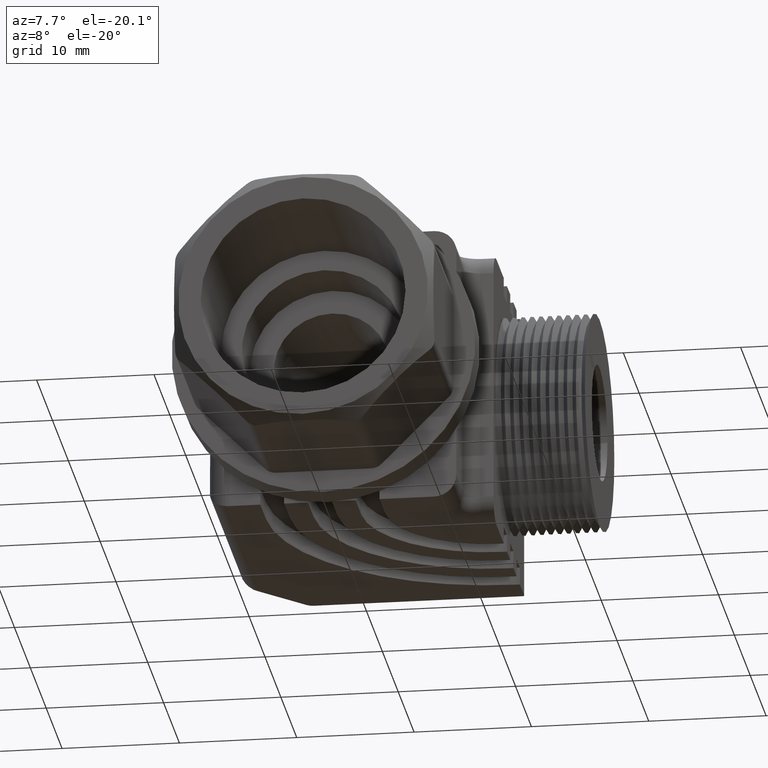
[diagram: clean part render]
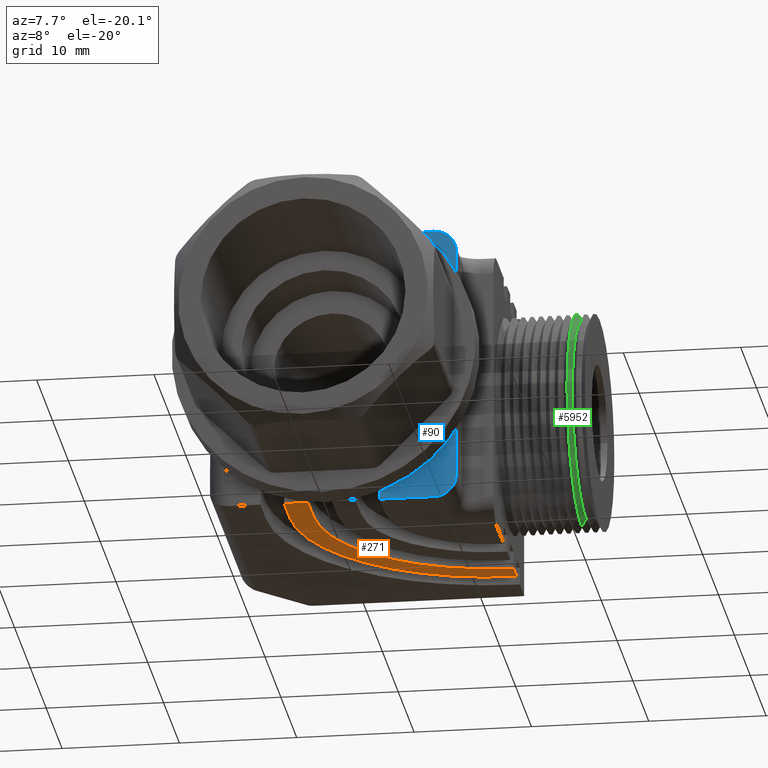
[diagram: same view with three faces highlighted in distinct colors, each labeled with its STEP entity id]
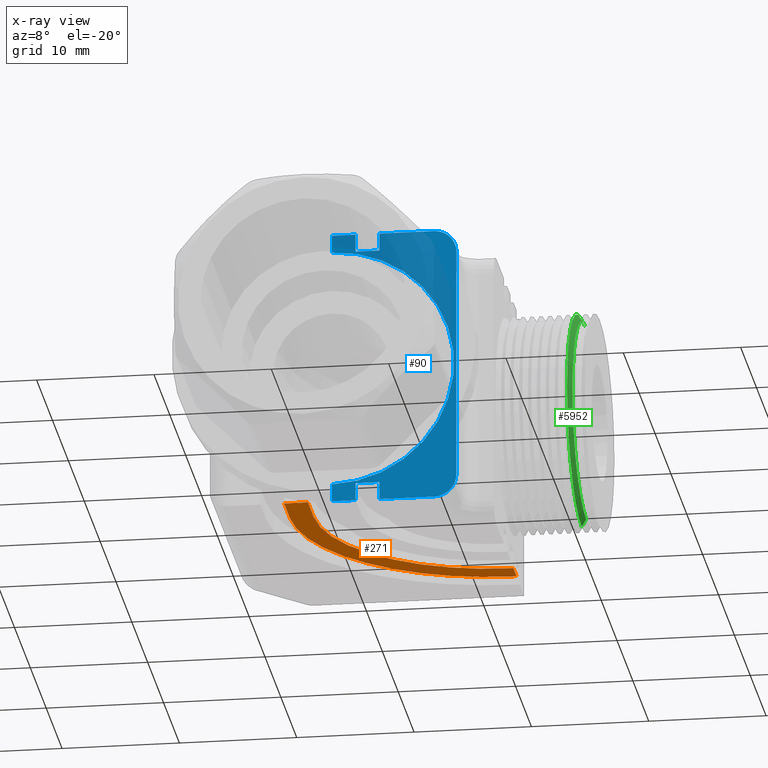
[diagram: x-ray of the same camera — body ghosted, the three highlighted faces saturated]
A machine part, auxiliary view with three faces highlighted in distinct colors.
The next image is the same camera in x-ray (body ghosted, the three faces saturated) — at least one of them is partly hidden behind the body in this view.
Their STEP definitions:

[orange] entity #271 — the highlighted planar face has unit normal (0, 0, 1).
#133 = ORIENTED_EDGE ( 'NONE', *, *, #135, .F. ) ;
#135 = EDGE_CURVE ( 'NONE', #249, #270, #1863, .T. ) ;
#185 = EDGE_LOOP ( 'NONE', ( #272, #251, #259, #223, #226, #242, #244, #133 ) ) ;
#222 = VERTEX_POINT ( 'NONE', #2075 ) ;
#223 = ORIENTED_EDGE ( 'NONE', *, *, #224, .F. ) ;
#224 = EDGE_CURVE ( 'NONE', #225, #222, #2074, .T. ) ;
#225 = VERTEX_POINT ( 'NONE', #2070 ) ;
#226 = ORIENTED_EDGE ( 'NONE', *, *, #227, .F. ) ;
#227 = EDGE_CURVE ( 'NONE', #228, #225, #2069, .T. ) ;
#228 = VERTEX_POINT ( 'NONE', #2064 ) ;
#231 = VERTEX_POINT ( 'NONE', #2059 ) ;
#242 = ORIENTED_EDGE ( 'NONE', *, *, #243, .T. ) ;
#243 = EDGE_CURVE ( 'NONE', #228, #231, #2102, .T. ) ;
#244 = ORIENTED_EDGE ( 'NONE', *, *, #246, .F. ) ;
#246 = EDGE_CURVE ( 'NONE', #270, #231, #2098, .T. ) ;
#248 = EDGE_CURVE ( 'NONE', #249, #250, #2094, .T. ) ;
#249 = VERTEX_POINT ( 'NONE', #2089 ) ;
#250 = VERTEX_POINT ( 'NONE', #2088 ) ;
#251 = ORIENTED_EDGE ( 'NONE', *, *, #252, .T. ) ;
#252 = EDGE_CURVE ( 'NONE', #250, #253, #2087, .T. ) ;
#253 = VERTEX_POINT ( 'NONE', #2083 ) ;
#259 = ORIENTED_EDGE ( 'NONE', *, *, #260, .F. ) ;
#260 = EDGE_CURVE ( 'NONE', #222, #253, #2142, .T. ) ;
#270 = VERTEX_POINT ( 'NONE', #2120 ) ;
#271 = ADVANCED_FACE ( 'NONE', ( #2119 ), #2118, .F. ) ;
#272 = ORIENTED_EDGE ( 'NONE', *, *, #248, .T. ) ;
#1860 = DIRECTION ( 'NONE',  ( -0.0000000000000000000, -1.000000000000000000, -0.0000000000000000000 ) ) ;
#1861 = VECTOR ( 'NONE', #1860, 39.37007874015748100 ) ;
#1862 = CARTESIAN_POINT ( 'NONE',  ( -0.1599999999999999200, 0.8549999999999998700, -0.4699999999999999700 ) ) ;
#1863 = LINE ( 'NONE', #1862, #1861 ) ;
#2059 = CARTESIAN_POINT ( 'NONE',  ( -0.07999999999999990500, 0.7140000000000000800, -0.4699999999999999700 ) ) ;
#2064 = CARTESIAN_POINT ( 'NONE',  ( -0.07999999999999990500, 0.8549999999999997600, -0.4699999999999997500 ) ) ;
#2065 = DIRECTION ( 'NONE',  ( -1.000000000000000000, 0.0000000000000000000, 0.0000000000000000000 ) ) ;
#2066 = DIRECTION ( 'NONE',  ( 0.0000000000000000000, 0.0000000000000000000, -1.000000000000000000 ) ) ;
#2067 = CARTESIAN_POINT ( 'NONE',  ( 0.5000000000000000000, 0.8549999999999997600, -0.4699999999999996400 ) ) ;
#2068 = AXIS2_PLACEMENT_3D ( 'NONE', #2067, #2066, #2065 ) ;
#2069 = CIRCLE ( 'NONE', #2068, 0.5799999999999998500 ) ;
#2070 = CARTESIAN_POINT ( 'NONE',  ( 0.4999999999999998300, 1.434999999999999800, -0.4699999999999996400 ) ) ;
#2071 = DIRECTION ( 'NONE',  ( 1.000000000000000000, 5.054488504686706200E-016, -0.0000000000000000000 ) ) ;
#2072 = VECTOR ( 'NONE', #2071, 39.37007874015748100 ) ;
#2073 = CARTESIAN_POINT ( 'NONE',  ( 0.5000000000000000000, 1.434999999999999800, -0.4699999999999996400 ) ) ;
#2074 = LINE ( 'NONE', #2073, #2072 ) ;
#2075 = CARTESIAN_POINT ( 'NONE',  ( 0.5119822449999997800, 1.434999999999999800, -0.4699999999999997500 ) ) ;
#2083 = CARTESIAN_POINT ( 'NONE',  ( 0.5119822449999997800, 1.514999999999999900, -0.4699999999999999700 ) ) ;
#2084 = DIRECTION ( 'NONE',  ( 1.000000000000000000, 0.0000000000000000000, -0.0000000000000000000 ) ) ;
#2085 = VECTOR ( 'NONE', #2084, 39.37007874015748100 ) ;
#2086 = CARTESIAN_POINT ( 'NONE',  ( 0.4680177549999999200, 1.514999999999999900, -0.4699999999999999700 ) ) ;
#2087 = LINE ( 'NONE', #2086, #2085 ) ;
#2088 = CARTESIAN_POINT ( 'NONE',  ( 0.5000000000000000000, 1.514999999999999500, -0.4699999999999999700 ) ) ;
#2089 = CARTESIAN_POINT ( 'NONE',  ( -0.1599999999999998100, 0.8549999999999997600, -0.4699999999999999700 ) ) ;
#2090 = DIRECTION ( 'NONE',  ( -1.000000000000000000, 0.0000000000000000000, 0.0000000000000000000 ) ) ;
#2091 = DIRECTION ( 'NONE',  ( 0.0000000000000000000, 0.0000000000000000000, -1.000000000000000000 ) ) ;
#2092 = CARTESIAN_POINT ( 'NONE',  ( 0.5000000000000000000, 0.8549999999999997600, -0.4699999999999999700 ) ) ;
#2093 = AXIS2_PLACEMENT_3D ( 'NONE', #2092, #2091, #2090 ) ;
#2094 = CIRCLE ( 'NONE', #2093, 0.6599999999999999200 ) ;
#2095 = DIRECTION ( 'NONE',  ( 1.000000000000000000, -0.0000000000000000000, -0.0000000000000000000 ) ) ;
#2096 = VECTOR ( 'NONE', #2095, 39.37007874015748100 ) ;
#2097 = CARTESIAN_POINT ( 'NONE',  ( 6.829619984160658000E-017, 0.7140000000000000800, -0.4699999999999999700 ) ) ;
#2098 = LINE ( 'NONE', #2097, #2096 ) ;
#2099 = DIRECTION ( 'NONE',  ( 0.0000000000000000000, -1.000000000000000000, -0.0000000000000000000 ) ) ;
#2100 = VECTOR ( 'NONE', #2099, 39.37007874015748100 ) ;
#2101 = CARTESIAN_POINT ( 'NONE',  ( -0.07999999999999990500, 0.8899999999999999000, -0.4699999999999999700 ) ) ;
#2102 = LINE ( 'NONE', #2101, #2100 ) ;
#2114 = DIRECTION ( 'NONE',  ( 1.000000000000000000, 0.0000000000000000000, -0.0000000000000000000 ) ) ;
#2115 = DIRECTION ( 'NONE',  ( 0.0000000000000000000, 0.0000000000000000000, 1.000000000000000000 ) ) ;
#2116 = CARTESIAN_POINT ( 'NONE',  ( 0.4680177549999999200, 0.8899999999999999000, -0.4699999999999999700 ) ) ;
#2117 = AXIS2_PLACEMENT_3D ( 'NONE', #2116, #2115, #2114 ) ;
#2118 = PLANE ( 'NONE',  #2117 ) ;
#2119 = FACE_OUTER_BOUND ( 'NONE', #185, .T. ) ;
#2120 = CARTESIAN_POINT ( 'NONE',  ( -0.1599999999999999200, 0.7140000000000000800, -0.4699999999999999700 ) ) ;
#2139 = DIRECTION ( 'NONE',  ( -1.645691562448351400E-016, 1.000000000000000000, -0.0000000000000000000 ) ) ;
#2140 = VECTOR ( 'NONE', #2139, 39.37007874015748100 ) ;
#2141 = CARTESIAN_POINT ( 'NONE',  ( 0.5119822449999997800, 1.770000000000000000, -0.4699999999999999700 ) ) ;
#2142 = LINE ( 'NONE', #2141, #2140 ) ;

[blue] entity #90 — the highlighted planar face has unit normal (0, 1, -0).
#14 = VERTEX_POINT ( 'NONE', #1672 ) ;
#21 = VERTEX_POINT ( 'NONE', #1724 ) ;
#63 = EDGE_CURVE ( 'NONE', #21, #14, #1747, .T. ) ;
#88 = VERTEX_POINT ( 'NONE', #1823 ) ;
#90 = ADVANCED_FACE ( 'NONE', ( #1821 ), #1820, .F. ) ;
#193 = VERTEX_POINT ( 'NONE', #2000 ) ;
#194 = ORIENTED_EDGE ( 'NONE', *, *, #316, .T. ) ;
#195 = VERTEX_POINT ( 'NONE', #1999 ) ;
#196 = ORIENTED_EDGE ( 'NONE', *, *, #212, .F. ) ;
#197 = ORIENTED_EDGE ( 'NONE', *, *, #198, .F. ) ;
#198 = EDGE_CURVE ( 'NONE', #21, #201, #1998, .T. ) ;
#199 = ORIENTED_EDGE ( 'NONE', *, *, #200, .F. ) ;
#200 = EDGE_CURVE ( 'NONE', #201, #305, #1994, .T. ) ;
#201 = VERTEX_POINT ( 'NONE', #1990 ) ;
#202 = ORIENTED_EDGE ( 'NONE', *, *, #306, .T. ) ;
#203 = VERTEX_POINT ( 'NONE', #1989 ) ;
#204 = ORIENTED_EDGE ( 'NONE', *, *, #279, .F. ) ;
#205 = ORIENTED_EDGE ( 'NONE', *, *, #206, .T. ) ;
#206 = EDGE_CURVE ( 'NONE', #14, #261, #1988, .T. ) ;
#207 = EDGE_CURVE ( 'NONE', #88, #235, #2045, .T. ) ;
#208 = EDGE_CURVE ( 'NONE', #195, #310, #2041, .T. ) ;
#209 = EDGE_CURVE ( 'NONE', #215, #307, #2036, .T. ) ;
#210 = EDGE_CURVE ( 'NONE', #213, #211, #2032, .T. ) ;
#211 = VERTEX_POINT ( 'NONE', #2027 ) ;
#212 = EDGE_CURVE ( 'NONE', #213, #310, #2026, .T. ) ;
#213 = VERTEX_POINT ( 'NONE', #2022 ) ;
#214 = ORIENTED_EDGE ( 'NONE', *, *, #210, .T. ) ;
#215 = VERTEX_POINT ( 'NONE', #2021 ) ;
#235 = VERTEX_POINT ( 'NONE', #2052 ) ;
#236 = VERTEX_POINT ( 'NONE', #2051 ) ;
#237 = ORIENTED_EDGE ( 'NONE', *, *, #238, .T. ) ;
#238 = EDGE_CURVE ( 'NONE', #236, #215, #2050, .T. ) ;
#261 = VERTEX_POINT ( 'NONE', #2138 ) ;
#263 = ORIENTED_EDGE ( 'NONE', *, *, #264, .F. ) ;
#264 = EDGE_CURVE ( 'NONE', #203, #211, #2137, .T. ) ;
#265 = ORIENTED_EDGE ( 'NONE', *, *, #266, .T. ) ;
#266 = EDGE_CURVE ( 'NONE', #261, #193, #2133, .T. ) ;
#278 = ORIENTED_EDGE ( 'NONE', *, *, #209, .T. ) ;
#279 = EDGE_CURVE ( 'NONE', #235, #203, #2161, .T. ) ;
#305 = VERTEX_POINT ( 'NONE', #2185 ) ;
#306 = EDGE_CURVE ( 'NONE', #307, #195, #2184, .T. ) ;
#307 = VERTEX_POINT ( 'NONE', #2180 ) ;
#308 = ORIENTED_EDGE ( 'NONE', *, *, #63, .T. ) ;
#309 = ORIENTED_EDGE ( 'NONE', *, *, #208, .T. ) ;
#310 = VERTEX_POINT ( 'NONE', #2179 ) ;
#311 = ORIENTED_EDGE ( 'NONE', *, *, #312, .F. ) ;
#312 = EDGE_CURVE ( 'NONE', #305, #88, #2178, .T. ) ;
#313 = ORIENTED_EDGE ( 'NONE', *, *, #207, .F. ) ;
#314 = EDGE_LOOP ( 'NONE', ( #278, #202, #309, #196, #214, #263, #204, #313, #311, #199, #197, #308, #205, #265, #194, #237 ) ) ;
#316 = EDGE_CURVE ( 'NONE', #193, #236, #2234, .T. ) ;
#1672 = CARTESIAN_POINT ( 'NONE',  ( 2.510443025335873500E-017, 0.7140000000000000800, -0.4099999999999997000 ) ) ;
#1724 = CARTESIAN_POINT ( 'NONE',  ( 5.105637887225099100E-017, 0.7140000000000000800, 0.4099999999999997000 ) ) ;
#1743 = DIRECTION ( 'NONE',  ( 0.0000000000000000000, 0.0000000000000000000, 1.000000000000000000 ) ) ;
#1744 = DIRECTION ( 'NONE',  ( 0.0000000000000000000, 1.000000000000000000, 0.0000000000000000000 ) ) ;
#1745 = CARTESIAN_POINT ( 'NONE',  ( 0.0000000000000000000, 0.7140000000000000800, 0.0000000000000000000 ) ) ;
#1746 = AXIS2_PLACEMENT_3D ( 'NONE', #1745, #1744, #1743 ) ;
#1747 = CIRCLE ( 'NONE', #1746, 0.4099999999999999800 ) ;
#1815 = DIRECTION ( 'NONE',  ( 0.0000000000000000000, 0.0000000000000000000, 1.000000000000000000 ) ) ;
#1816 = DIRECTION ( 'NONE',  ( 0.0000000000000000000, 1.000000000000000000, -0.0000000000000000000 ) ) ;
#1817 = CARTESIAN_POINT ( 'NONE',  ( 6.829619984160658000E-017, 0.7140000000000000800, 0.4699999999999999700 ) ) ;
#1818 = AXIS2_PLACEMENT_3D ( 'NONE', #1817, #1816, #1815 ) ;
#1820 = PLANE ( 'NONE',  #1818 ) ;
#1821 = FACE_OUTER_BOUND ( 'NONE', #314, .T. ) ;
#1823 = CARTESIAN_POINT ( 'NONE',  ( 0.07999999999999998800, 0.7140000000000000800, 0.4099999999999994800 ) ) ;
#1985 = DIRECTION ( 'NONE',  ( -0.0000000000000000000, -0.0000000000000000000, -1.000000000000000000 ) ) ;
#1986 = VECTOR ( 'NONE', #1985, 39.37007874015748100 ) ;
#1987 = CARTESIAN_POINT ( 'NONE',  ( 6.735334946023065300E-017, 0.7140000000000000800, 0.4699999999999999700 ) ) ;
#1988 = LINE ( 'NONE', #1987, #1986 ) ;
#1989 = CARTESIAN_POINT ( 'NONE',  ( 0.1600000000000002000, 0.7140000000000000800, 0.4699999999999999700 ) ) ;
#1990 = CARTESIAN_POINT ( 'NONE',  ( 6.806048724626259600E-017, 0.7140000000000000800, 0.4699999999999999700 ) ) ;
#1991 = DIRECTION ( 'NONE',  ( 1.000000000000000000, 3.267621962210985600E-016, -0.0000000000000000000 ) ) ;
#1992 = VECTOR ( 'NONE', #1991, 39.37007874015748100 ) ;
#1993 = CARTESIAN_POINT ( 'NONE',  ( 0.4180177550000002700, 0.7140000000000001900, 0.4699999999999999700 ) ) ;
#1994 = LINE ( 'NONE', #1993, #1992 ) ;
#1995 = DIRECTION ( 'NONE',  ( -5.793234714045230400E-016, -0.0000000000000000000, 1.000000000000000000 ) ) ;
#1996 = VECTOR ( 'NONE', #1995, 39.37007874015748100 ) ;
#1997 = CARTESIAN_POINT ( 'NONE',  ( 6.735334946023081300E-017, 0.7140000000000000800, 0.4699999999999996400 ) ) ;
#1998 = LINE ( 'NONE', #1997, #1996 ) ;
#1999 = CARTESIAN_POINT ( 'NONE',  ( 0.3430177550000002600, 0.7140000000000000800, -0.4699999999999999700 ) ) ;
#2000 = CARTESIAN_POINT ( 'NONE',  ( 0.07999999999999996000, 0.7140000000000000800, -0.4699999999999999700 ) ) ;
#2021 = CARTESIAN_POINT ( 'NONE',  ( 0.1600000000000002000, 0.7140000000000000800, -0.4099999999999994800 ) ) ;
#2022 = CARTESIAN_POINT ( 'NONE',  ( 0.4180177550000002700, 0.7140000000000001900, 0.3949999999999999600 ) ) ;
#2023 = DIRECTION ( 'NONE',  ( -0.0000000000000000000, -0.0000000000000000000, -1.000000000000000000 ) ) ;
#2024 = VECTOR ( 'NONE', #2023, 39.37007874015748100 ) ;
#2025 = CARTESIAN_POINT ( 'NONE',  ( 0.4180177550000002700, 0.7140000000000001900, 0.4699999999999999700 ) ) ;
#2026 = LINE ( 'NONE', #2025, #2024 ) ;
#2027 = CARTESIAN_POINT ( 'NONE',  ( 0.3430177550000002600, 0.7140000000000001900, 0.4699999999999999700 ) ) ;
#2028 = DIRECTION ( 'NONE',  ( 0.0000000000000000000, 0.0000000000000000000, 1.000000000000000000 ) ) ;
#2029 = DIRECTION ( 'NONE',  ( -0.0000000000000000000, -1.000000000000000000, 0.0000000000000000000 ) ) ;
#2030 = CARTESIAN_POINT ( 'NONE',  ( 0.3430177550000002600, 0.7140000000000000800, 0.3949999999999999600 ) ) ;
#2031 = AXIS2_PLACEMENT_3D ( 'NONE', #2030, #2029, #2028 ) ;
#2032 = CIRCLE ( 'NONE', #2031, 0.07500000000000002500 ) ;
#2033 = DIRECTION ( 'NONE',  ( -0.0000000000000000000, -0.0000000000000000000, -1.000000000000000000 ) ) ;
#2034 = VECTOR ( 'NONE', #2033, 39.37007874015748100 ) ;
#2035 = CARTESIAN_POINT ( 'NONE',  ( 0.1600000000000001700, 0.7140000000000000800, 0.4699999999999999700 ) ) ;
#2036 = LINE ( 'NONE', #2035, #2034 ) ;
#2037 = DIRECTION ( 'NONE',  ( 0.0000000000000000000, 0.0000000000000000000, 1.000000000000000000 ) ) ;
#2038 = DIRECTION ( 'NONE',  ( -0.0000000000000000000, -1.000000000000000000, 0.0000000000000000000 ) ) ;
#2039 = CARTESIAN_POINT ( 'NONE',  ( 0.3430177550000002600, 0.7140000000000000800, -0.3949999999999999600 ) ) ;
#2040 = AXIS2_PLACEMENT_3D ( 'NONE', #2039, #2038, #2037 ) ;
#2041 = CIRCLE ( 'NONE', #2040, 0.07500000000000002500 ) ;
#2042 = DIRECTION ( 'NONE',  ( 1.000000000000000000, -0.0000000000000000000, 0.0000000000000000000 ) ) ;
#2043 = VECTOR ( 'NONE', #2042, 39.37007874015748100 ) ;
#2044 = CARTESIAN_POINT ( 'NONE',  ( 0.1600000000000002000, 0.7140000000000000800, 0.4099999999999994800 ) ) ;
#2045 = LINE ( 'NONE', #2044, #2043 ) ;
#2047 = DIRECTION ( 'NONE',  ( 1.000000000000000000, -0.0000000000000000000, 0.0000000000000000000 ) ) ;
#2048 = VECTOR ( 'NONE', #2047, 39.37007874015748100 ) ;
#2049 = CARTESIAN_POINT ( 'NONE',  ( 6.829619984160658000E-017, 0.7140000000000000800, -0.4099999999999993600 ) ) ;
#2050 = LINE ( 'NONE', #2049, #2048 ) ;
#2051 = CARTESIAN_POINT ( 'NONE',  ( 0.07999999999999998800, 0.7140000000000000800, -0.4099999999999994800 ) ) ;
#2052 = CARTESIAN_POINT ( 'NONE',  ( 0.1600000000000002000, 0.7140000000000000800, 0.4099999999999994800 ) ) ;
#2130 = DIRECTION ( 'NONE',  ( 1.000000000000000000, -0.0000000000000000000, -0.0000000000000000000 ) ) ;
#2131 = VECTOR ( 'NONE', #2130, 39.37007874015748100 ) ;
#2132 = CARTESIAN_POINT ( 'NONE',  ( 6.829619984160658000E-017, 0.7140000000000000800, -0.4699999999999999700 ) ) ;
#2133 = LINE ( 'NONE', #2132, #2131 ) ;
#2134 = DIRECTION ( 'NONE',  ( 1.000000000000000000, 3.267621962210985600E-016, -0.0000000000000000000 ) ) ;
#2135 = VECTOR ( 'NONE', #2134, 39.37007874015748100 ) ;
#2136 = CARTESIAN_POINT ( 'NONE',  ( 0.4180177550000002700, 0.7140000000000001900, 0.4699999999999999700 ) ) ;
#2137 = LINE ( 'NONE', #2136, #2135 ) ;
#2138 = CARTESIAN_POINT ( 'NONE',  ( 6.735334946023069000E-017, 0.7140000000000000800, -0.4699999999999997500 ) ) ;
#2158 = DIRECTION ( 'NONE',  ( -5.691349986800532100E-016, -0.0000000000000000000, 1.000000000000000000 ) ) ;
#2159 = VECTOR ( 'NONE', #2158, 39.37007874015748100 ) ;
#2160 = CARTESIAN_POINT ( 'NONE',  ( 0.1600000000000001700, 0.7140000000000000800, 0.4699999999999996400 ) ) ;
#2161 = LINE ( 'NONE', #2160, #2159 ) ;
#2175 = DIRECTION ( 'NONE',  ( -0.0000000000000000000, -0.0000000000000000000, -1.000000000000000000 ) ) ;
#2176 = VECTOR ( 'NONE', #2175, 39.37007874015748100 ) ;
#2177 = CARTESIAN_POINT ( 'NONE',  ( 0.07999999999999998800, 0.7140000000000000800, 0.4099999999999994800 ) ) ;
#2178 = LINE ( 'NONE', #2177, #2176 ) ;
#2179 = CARTESIAN_POINT ( 'NONE',  ( 0.4180177550000002700, 0.7140000000000001900, -0.3949999999999999600 ) ) ;
#2180 = CARTESIAN_POINT ( 'NONE',  ( 0.1600000000000001700, 0.7140000000000000800, -0.4699999999999997500 ) ) ;
#2181 = DIRECTION ( 'NONE',  ( 1.000000000000000000, -0.0000000000000000000, -0.0000000000000000000 ) ) ;
#2182 = VECTOR ( 'NONE', #2181, 39.37007874015748100 ) ;
#2183 = CARTESIAN_POINT ( 'NONE',  ( 6.829619984160658000E-017, 0.7140000000000000800, -0.4699999999999999700 ) ) ;
#2184 = LINE ( 'NONE', #2183, #2182 ) ;
#2185 = CARTESIAN_POINT ( 'NONE',  ( 0.07999999999999996000, 0.7140000000000000800, 0.4699999999999997500 ) ) ;
#2231 = DIRECTION ( 'NONE',  ( 0.0000000000000000000, 0.0000000000000000000, 1.000000000000000000 ) ) ;
#2232 = VECTOR ( 'NONE', #2231, 39.37007874015748100 ) ;
#2233 = CARTESIAN_POINT ( 'NONE',  ( 0.07999999999999998800, 0.7140000000000000800, 0.4699999999999999700 ) ) ;
#2234 = LINE ( 'NONE', #2233, #2232 ) ;

[green] entity #5952 — the highlighted conical surface has half-angle 60.018 deg.
#836 = VERTEX_POINT ( 'NONE', #3038 ) ;
#840 = VERTEX_POINT ( 'NONE', #3037 ) ;
#841 = VERTEX_POINT ( 'NONE', #3036 ) ;
#863 = EDGE_CURVE ( 'NONE', #840, #836, #3063, .T. ) ;
#886 = VERTEX_POINT ( 'NONE', #3091 ) ;
#927 = EDGE_CURVE ( 'NONE', #841, #886, #3157, .T. ) ;
#1559 = EDGE_CURVE ( 'NONE', #1585, #886, #4310, .T. ) ;
#1585 = VERTEX_POINT ( 'NONE', #4330 ) ;
#1610 = EDGE_CURVE ( 'NONE', #836, #1585, #4350, .T. ) ;
#3036 = CARTESIAN_POINT ( 'NONE',  ( 0.7669740821627746300, 1.355000000000000000, 0.3390145267796628200 ) ) ;
#3037 = CARTESIAN_POINT ( 'NONE',  ( 0.7669740821627746300, 1.355000000000000000, -0.3390145267796628200 ) ) ;
#3038 = CARTESIAN_POINT ( 'NONE',  ( 0.7520257524948272800, 1.355000000000000000, -0.3649245881055498400 ) ) ;
#3060 = DIRECTION ( 'NONE',  ( -0.4997279054258310100, 1.060732520423522300E-016, -0.8661824406778929600 ) ) ;
#3061 = VECTOR ( 'NONE', #3060, 39.37007874015748100 ) ;
#3062 = CARTESIAN_POINT ( 'NONE',  ( 0.7519822449999997700, 1.355000000000000000, -0.3649999999999995500 ) ) ;
#3063 = LINE ( 'NONE', #3062, #3061 ) ;
#3091 = CARTESIAN_POINT ( 'NONE',  ( 0.7520257524948272800, 1.355000000000000000, 0.3649245881055498400 ) ) ;
#3154 = DIRECTION ( 'NONE',  ( -0.4997279054258310100, 0.0000000000000000000, 0.8661824406778929600 ) ) ;
#3155 = VECTOR ( 'NONE', #3154, 39.37007874015748100 ) ;
#3156 = CARTESIAN_POINT ( 'NONE',  ( 0.7519822449999997700, 1.355000000000000000, 0.3649999999999995500 ) ) ;
#3157 = LINE ( 'NONE', #3156, #3155 ) ;
#4306 = DIRECTION ( 'NONE',  ( 0.0000000000000000000, -1.000000000000000000, 0.0000000000000000000 ) ) ;
#4307 = DIRECTION ( 'NONE',  ( -1.000000000000000000, -9.756599977372369900E-017, -0.0000000000000000000 ) ) ;
#4308 = CARTESIAN_POINT ( 'NONE',  ( 0.7520257524948272800, 1.355000000000000000, 0.0000000000000000000 ) ) ;
#4309 = AXIS2_PLACEMENT_3D ( 'NONE', #4308, #4307, #4306 ) ;
#4310 = CIRCLE ( 'NONE', #4309, 0.3649245881055498400 ) ;
#4330 = CARTESIAN_POINT ( 'NONE',  ( 0.7520257524948272800, 0.9900754118944500300, -2.495774980208651500E-016 ) ) ;
#4342 = DIRECTION ( 'NONE',  ( -1.000000000000000000, -9.756599977372369900E-017, -0.0000000000000000000 ) ) ;
#4343 = CARTESIAN_POINT ( 'NONE',  ( 0.7520257524948272800, 1.355000000000000000, 0.0000000000000000000 ) ) ;
#4344 = AXIS2_PLACEMENT_3D ( 'NONE', #4343, #4342, #4402 ) ;
#4350 = CIRCLE ( 'NONE', #4344, 0.3649245881055498400 ) ;
#4402 = DIRECTION ( 'NONE',  ( 0.0000000000000000000, -1.000000000000000000, 0.0000000000000000000 ) ) ;
#4686 = DIRECTION ( 'NONE',  ( 0.0000000000000000000, 0.0000000000000000000, 1.000000000000000000 ) ) ;
#4687 = DIRECTION ( 'NONE',  ( -1.000000000000000000, 0.0000000000000000000, 0.0000000000000000000 ) ) ;
#4688 = CARTESIAN_POINT ( 'NONE',  ( 0.7519822449999997700, 1.355000000000000000, 0.0000000000000000000 ) ) ;
#4689 = AXIS2_PLACEMENT_3D ( 'NONE', #4688, #4687, #4686 ) ;
#4690 = CONICAL_SURFACE ( 'NONE', #4689, 0.3649999999999995500, 1.047511710461954900 ) ;
#4695 = FACE_OUTER_BOUND ( 'NONE', #5954, .T. ) ;
#4818 = DIRECTION ( 'NONE',  ( 0.0000000000000000000, 0.0000000000000000000, -1.000000000000000000 ) ) ;
#4819 = DIRECTION ( 'NONE',  ( 1.000000000000000000, -0.0000000000000000000, -0.0000000000000000000 ) ) ;
#4820 = CARTESIAN_POINT ( 'NONE',  ( 0.7669740821627746300, 1.355000000000000000, 0.0000000000000000000 ) ) ;
#4821 = AXIS2_PLACEMENT_3D ( 'NONE', #4820, #4819, #4818 ) ;
#4826 = CIRCLE ( 'NONE', #4821, 0.3390145267796628200 ) ;
#5949 = ORIENTED_EDGE ( 'NONE', *, *, #927, .T. ) ;
#5950 = ORIENTED_EDGE ( 'NONE', *, *, #863, .F. ) ;
#5952 = ADVANCED_FACE ( 'NONE', ( #4695 ), #4690, .T. ) ;
#5954 = EDGE_LOOP ( 'NONE', ( #5950, #5955, #5949, #6032, #6033 ) ) ;
#5955 = ORIENTED_EDGE ( 'NONE', *, *, #6034, .F. ) ;
#6032 = ORIENTED_EDGE ( 'NONE', *, *, #1559, .F. ) ;
#6033 = ORIENTED_EDGE ( 'NONE', *, *, #1610, .F. ) ;
#6034 = EDGE_CURVE ( 'NONE', #841, #840, #4826, .T. ) ;